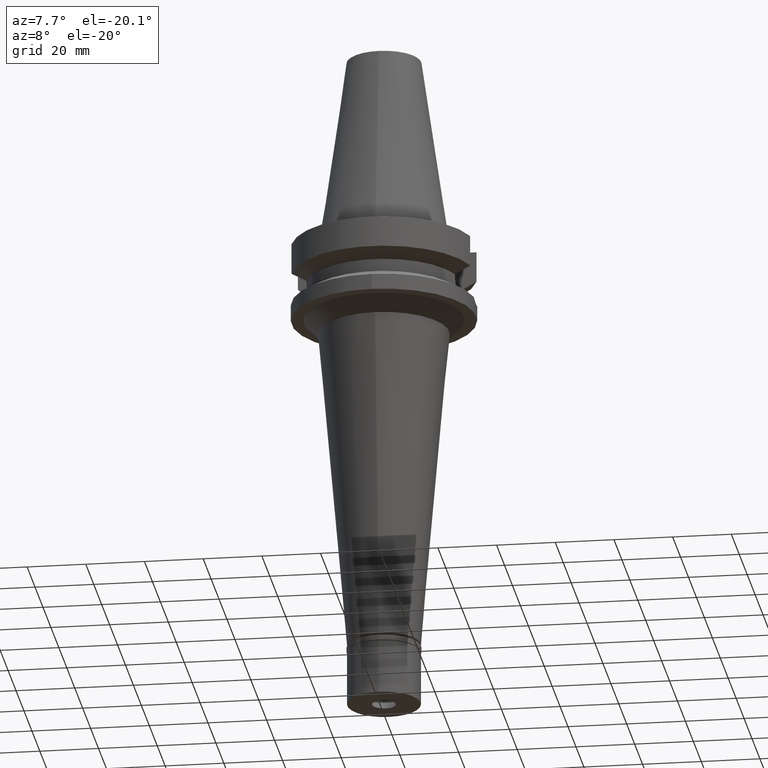
[diagram: clean part render]
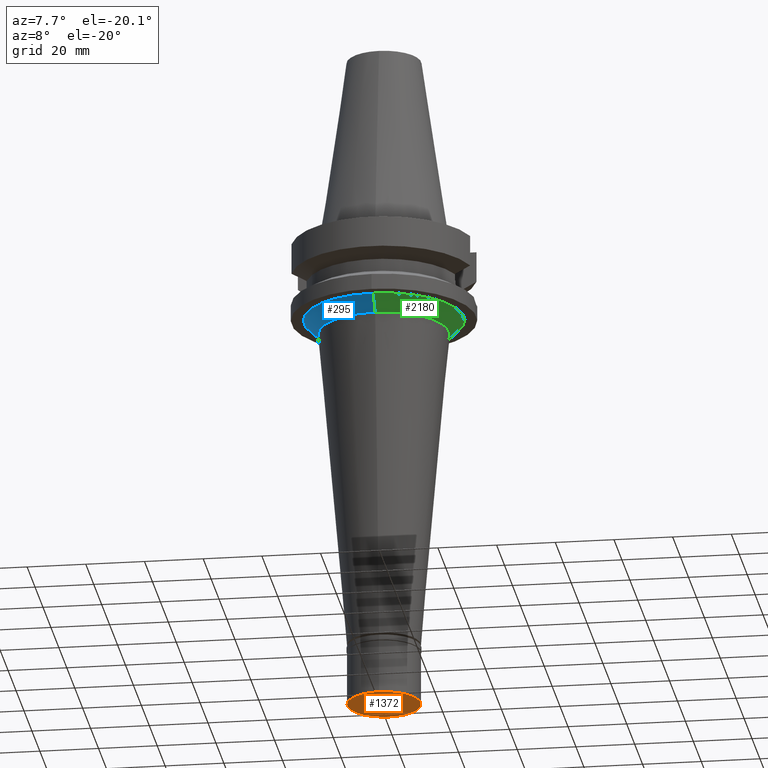
[diagram: same view with three faces highlighted in distinct colors, each labeled with its STEP entity id]
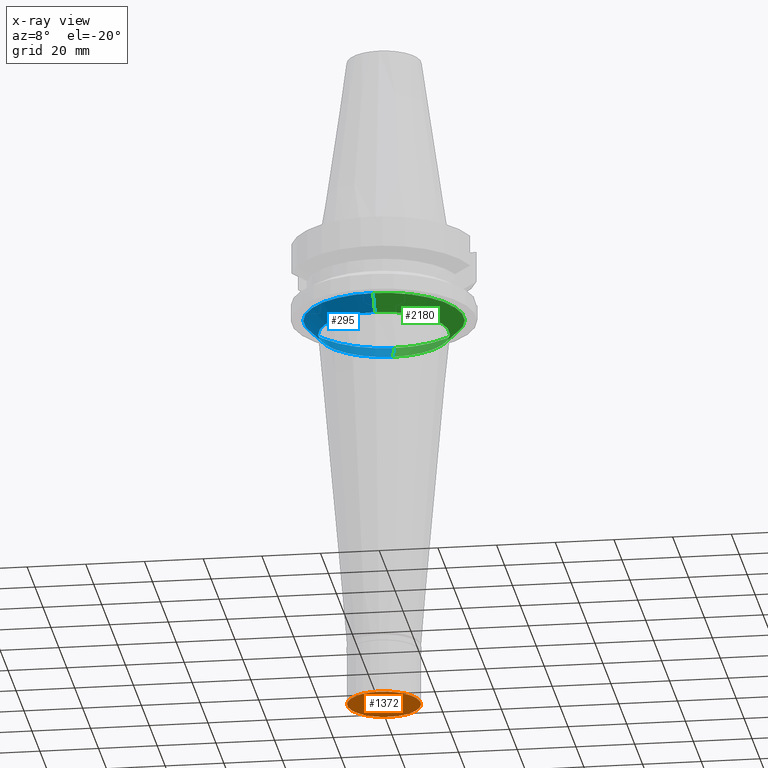
[diagram: x-ray of the same camera — body ghosted, the three highlighted faces saturated]
A machine part, auxiliary view with three faces highlighted in distinct colors.
The next image is the same camera in x-ray (body ghosted, the three faces saturated) — at least one of them is partly hidden behind the body in this view.
Their STEP definitions:

[orange] entity #1372 — the highlighted planar face has unit normal (0, 0, -1).
#53 = DIRECTION ( 'NONE',  ( 0.0000000000000000000, 1.000000000000000000, 0.0000000000000000000 ) ) ;
#72 = AXIS2_PLACEMENT_3D ( 'NONE', #2499, #307, #2226 ) ;
#119 = FACE_OUTER_BOUND ( 'NONE', #437, .T. ) ;
#270 = VERTEX_POINT ( 'NONE', #2022 ) ;
#290 = EDGE_CURVE ( 'NONE', #1470, #1261, #2713, .T. ) ;
#307 = DIRECTION ( 'NONE',  ( 0.0000000000000000000, 0.0000000000000000000, -1.000000000000000000 ) ) ;
#323 = ORIENTED_EDGE ( 'NONE', *, *, #290, .F. ) ;
#359 = CARTESIAN_POINT ( 'NONE',  ( 0.0000000000000000000, 0.0000000000000000000, -20.50000000000000000 ) ) ;
#414 = DIRECTION ( 'NONE',  ( 0.0000000000000000000, 0.0000000000000000000, -1.000000000000000000 ) ) ;
#437 = EDGE_LOOP ( 'NONE', ( #323, #1566 ) ) ;
#464 = CIRCLE ( 'NONE', #1433, 12.50000000000000000 ) ;
#567 = DIRECTION ( 'NONE',  ( 0.0000000000000000000, -1.000000000000000000, 0.0000000000000000000 ) ) ;
#583 = DIRECTION ( 'NONE',  ( 0.0000000000000000000, 0.0000000000000000000, -1.000000000000000000 ) ) ;
#587 = EDGE_CURVE ( 'NONE', #1261, #1470, #464, .T. ) ;
#613 = AXIS2_PLACEMENT_3D ( 'NONE', #2245, #814, #53 ) ;
#671 = DIRECTION ( 'NONE',  ( 0.0000000000000000000, 1.000000000000000000, 0.0000000000000000000 ) ) ;
#814 = DIRECTION ( 'NONE',  ( 0.0000000000000000000, 0.0000000000000000000, 1.000000000000000000 ) ) ;
#890 = CIRCLE ( 'NONE', #1854, 4.050000000000999911 ) ;
#1187 = AXIS2_PLACEMENT_3D ( 'NONE', #1629, #414, #671 ) ;
#1202 = EDGE_CURVE ( 'NONE', #270, #1942, #890, .T. ) ;
#1261 = VERTEX_POINT ( 'NONE', #2515 ) ;
#1372 = ADVANCED_FACE ( 'NONE', ( #119, #1511 ), #2511, .T. ) ;
#1433 = AXIS2_PLACEMENT_3D ( 'NONE', #2837, #1868, #3076 ) ;
#1470 = VERTEX_POINT ( 'NONE', #2338 ) ;
#1511 = FACE_BOUND ( 'NONE', #2637, .T. ) ;
#1566 = ORIENTED_EDGE ( 'NONE', *, *, #587, .F. ) ;
#1629 = CARTESIAN_POINT ( 'NONE',  ( 0.0000000000000000000, 0.0000000000000000000, -20.50000000000000000 ) ) ;
#1740 = CIRCLE ( 'NONE', #1187, 4.050000000000999911 ) ;
#1854 = AXIS2_PLACEMENT_3D ( 'NONE', #359, #583, #567 ) ;
#1868 = DIRECTION ( 'NONE',  ( 0.0000000000000000000, 0.0000000000000000000, 1.000000000000000000 ) ) ;
#1942 = VERTEX_POINT ( 'NONE', #3097 ) ;
#2022 = CARTESIAN_POINT ( 'NONE',  ( 0.0000000000000000000, -4.050000000000999911, -20.50000000000000000 ) ) ;
#2226 = DIRECTION ( 'NONE',  ( 0.0000000000000000000, -1.000000000000000000, 0.0000000000000000000 ) ) ;
#2245 = CARTESIAN_POINT ( 'NONE',  ( 0.0000000000000000000, 0.0000000000000000000, -20.50000000000000000 ) ) ;
#2338 = CARTESIAN_POINT ( 'NONE',  ( 0.0000000000000000000, 12.50000000000000000, -20.50000000000000000 ) ) ;
#2499 = CARTESIAN_POINT ( 'NONE',  ( 0.0000000000000000000, 0.0000000000000000000, -20.50000000000000000 ) ) ;
#2511 = PLANE ( 'NONE',  #72 ) ;
#2515 = CARTESIAN_POINT ( 'NONE',  ( 0.0000000000000000000, -12.50000000000000000, -20.50000000000000000 ) ) ;
#2580 = EDGE_CURVE ( 'NONE', #1942, #270, #1740, .T. ) ;
#2637 = EDGE_LOOP ( 'NONE', ( #2894, #2954 ) ) ;
#2713 = CIRCLE ( 'NONE', #613, 12.50000000000000000 ) ;
#2837 = CARTESIAN_POINT ( 'NONE',  ( 0.0000000000000000000, 0.0000000000000000000, -20.50000000000000000 ) ) ;
#2894 = ORIENTED_EDGE ( 'NONE', *, *, #2580, .F. ) ;
#2954 = ORIENTED_EDGE ( 'NONE', *, *, #1202, .F. ) ;
#3076 = DIRECTION ( 'NONE',  ( 0.0000000000000000000, -1.000000000000000000, 0.0000000000000000000 ) ) ;
#3097 = CARTESIAN_POINT ( 'NONE',  ( 0.0000000000000000000, 4.050000000000999911, -20.50000000000000000 ) ) ;

[blue] entity #295 — the highlighted conical surface has half-angle 45 deg.
#20 = DIRECTION ( 'NONE',  ( 0.0000000000000000000, 0.0000000000000000000, 1.000000000000000000 ) ) ;
#70 = ORIENTED_EDGE ( 'NONE', *, *, #1423, .F. ) ;
#80 = ORIENTED_EDGE ( 'NONE', *, *, #1410, .F. ) ;
#117 = CIRCLE ( 'NONE', #1391, 22.27248371585000086 ) ;
#280 = CARTESIAN_POINT ( 'NONE',  ( 0.0000000000000000000, -27.27248371584999731, -27.00000000000000000 ) ) ;
#292 = DIRECTION ( 'NONE',  ( 0.0000000000000000000, 0.7071067811867980391, -0.7071067811862969954 ) ) ;
#295 = ADVANCED_FACE ( 'NONE', ( #1027 ), #2422, .T. ) ;
#413 = AXIS2_PLACEMENT_3D ( 'NONE', #1784, #20, #1970 ) ;
#514 = CARTESIAN_POINT ( 'NONE',  ( 0.0000000000000000000, -22.27248371585000086, -32.00000000000000000 ) ) ;
#588 = DIRECTION ( 'NONE',  ( 0.0000000000000000000, -0.7071067811867980391, -0.7071067811862969954 ) ) ;
#787 = DIRECTION ( 'NONE',  ( 0.0000000000000000000, 0.0000000000000000000, -1.000000000000000000 ) ) ;
#802 = CARTESIAN_POINT ( 'NONE',  ( 0.0000000000000000000, 27.27248371584999731, -27.00000000000000000 ) ) ;
#875 = DIRECTION ( 'NONE',  ( 0.0000000000000000000, -1.000000000000000000, 0.0000000000000000000 ) ) ;
#1019 = ORIENTED_EDGE ( 'NONE', *, *, #2902, .T. ) ;
#1027 = FACE_OUTER_BOUND ( 'NONE', #2786, .T. ) ;
#1050 = DIRECTION ( 'NONE',  ( 0.0000000000000000000, -1.000000000000000000, 0.0000000000000000000 ) ) ;
#1162 = VERTEX_POINT ( 'NONE', #514 ) ;
#1255 = DIRECTION ( 'NONE',  ( 0.0000000000000000000, 0.0000000000000000000, -1.000000000000000000 ) ) ;
#1325 = LINE ( 'NONE', #280, #2871 ) ;
#1390 = AXIS2_PLACEMENT_3D ( 'NONE', #1807, #787, #1050 ) ;
#1391 = AXIS2_PLACEMENT_3D ( 'NONE', #3059, #1255, #875 ) ;
#1410 = EDGE_CURVE ( 'NONE', #2433, #1162, #1325, .T. ) ;
#1423 = EDGE_CURVE ( 'NONE', #1162, #2070, #117, .T. ) ;
#1436 = CIRCLE ( 'NONE', #1390, 27.27248371584999731 ) ;
#1784 = CARTESIAN_POINT ( 'NONE',  ( 0.0000000000000000000, 0.0000000000000000000, -29.50000000000000000 ) ) ;
#1807 = CARTESIAN_POINT ( 'NONE',  ( 0.0000000000000000000, 0.0000000000000000000, -27.00000000000000000 ) ) ;
#1823 = LINE ( 'NONE', #802, #2116 ) ;
#1970 = DIRECTION ( 'NONE',  ( 0.0000000000000000000, 1.000000000000000000, 0.0000000000000000000 ) ) ;
#2070 = VERTEX_POINT ( 'NONE', #2111 ) ;
#2087 = VERTEX_POINT ( 'NONE', #2651 ) ;
#2111 = CARTESIAN_POINT ( 'NONE',  ( 0.0000000000000000000, 22.27248371585000086, -32.00000000000000000 ) ) ;
#2116 = VECTOR ( 'NONE', #588, 1000.000000000000000 ) ;
#2422 = CONICAL_SURFACE ( 'NONE', #413, 24.77248371584999731, 0.7853981633972997312 ) ;
#2433 = VERTEX_POINT ( 'NONE', #2784 ) ;
#2651 = CARTESIAN_POINT ( 'NONE',  ( 0.0000000000000000000, 27.27248371584999731, -27.00000000000000000 ) ) ;
#2779 = EDGE_CURVE ( 'NONE', #2087, #2070, #1823, .T. ) ;
#2784 = CARTESIAN_POINT ( 'NONE',  ( 0.0000000000000000000, -27.27248371584999731, -27.00000000000000000 ) ) ;
#2786 = EDGE_LOOP ( 'NONE', ( #70, #80, #1019, #3090 ) ) ;
#2871 = VECTOR ( 'NONE', #292, 1000.000000000000000 ) ;
#2902 = EDGE_CURVE ( 'NONE', #2433, #2087, #1436, .T. ) ;
#3059 = CARTESIAN_POINT ( 'NONE',  ( 0.0000000000000000000, 0.0000000000000000000, -32.00000000000000000 ) ) ;
#3090 = ORIENTED_EDGE ( 'NONE', *, *, #2779, .T. ) ;

[green] entity #2180 — the highlighted conical surface has half-angle 45 deg.
#57 = DIRECTION ( 'NONE',  ( 0.0000000000000000000, 0.0000000000000000000, 1.000000000000000000 ) ) ;
#256 = FACE_OUTER_BOUND ( 'NONE', #1016, .T. ) ;
#280 = CARTESIAN_POINT ( 'NONE',  ( 0.0000000000000000000, -27.27248371584999731, -27.00000000000000000 ) ) ;
#284 = ORIENTED_EDGE ( 'NONE', *, *, #2873, .T. ) ;
#289 = EDGE_CURVE ( 'NONE', #2087, #2433, #883, .T. ) ;
#292 = DIRECTION ( 'NONE',  ( 0.0000000000000000000, 0.7071067811867980391, -0.7071067811862969954 ) ) ;
#514 = CARTESIAN_POINT ( 'NONE',  ( 0.0000000000000000000, -22.27248371585000086, -32.00000000000000000 ) ) ;
#588 = DIRECTION ( 'NONE',  ( 0.0000000000000000000, -0.7071067811867980391, -0.7071067811862969954 ) ) ;
#630 = AXIS2_PLACEMENT_3D ( 'NONE', #1742, #57, #2494 ) ;
#802 = CARTESIAN_POINT ( 'NONE',  ( 0.0000000000000000000, 27.27248371584999731, -27.00000000000000000 ) ) ;
#808 = ORIENTED_EDGE ( 'NONE', *, *, #2779, .F. ) ;
#883 = CIRCLE ( 'NONE', #1429, 27.27248371584999731 ) ;
#940 = CIRCLE ( 'NONE', #2521, 22.27248371583999997 ) ;
#1016 = EDGE_LOOP ( 'NONE', ( #1594, #1630, #284, #808 ) ) ;
#1063 = DIRECTION ( 'NONE',  ( 0.0000000000000000000, 0.0000000000000000000, -1.000000000000000000 ) ) ;
#1162 = VERTEX_POINT ( 'NONE', #514 ) ;
#1257 = CARTESIAN_POINT ( 'NONE',  ( 0.0000000000000000000, 0.0000000000000000000, -27.00000000000000000 ) ) ;
#1307 = CARTESIAN_POINT ( 'NONE',  ( 0.0000000000000000000, 0.0000000000000000000, -32.00000000000000000 ) ) ;
#1319 = DIRECTION ( 'NONE',  ( 0.0000000000000000000, -1.000000000000000000, 0.0000000000000000000 ) ) ;
#1325 = LINE ( 'NONE', #280, #2871 ) ;
#1410 = EDGE_CURVE ( 'NONE', #2433, #1162, #1325, .T. ) ;
#1429 = AXIS2_PLACEMENT_3D ( 'NONE', #1257, #1063, #2206 ) ;
#1594 = ORIENTED_EDGE ( 'NONE', *, *, #289, .T. ) ;
#1630 = ORIENTED_EDGE ( 'NONE', *, *, #1410, .T. ) ;
#1742 = CARTESIAN_POINT ( 'NONE',  ( 0.0000000000000000000, 0.0000000000000000000, -29.50000000000000000 ) ) ;
#1823 = LINE ( 'NONE', #802, #2116 ) ;
#2003 = DIRECTION ( 'NONE',  ( 0.0000000000000000000, 0.0000000000000000000, 1.000000000000000000 ) ) ;
#2070 = VERTEX_POINT ( 'NONE', #2111 ) ;
#2087 = VERTEX_POINT ( 'NONE', #2651 ) ;
#2111 = CARTESIAN_POINT ( 'NONE',  ( 0.0000000000000000000, 22.27248371585000086, -32.00000000000000000 ) ) ;
#2116 = VECTOR ( 'NONE', #588, 1000.000000000000000 ) ;
#2180 = ADVANCED_FACE ( 'NONE', ( #256 ), #2274, .T. ) ;
#2206 = DIRECTION ( 'NONE',  ( 0.0000000000000000000, 1.000000000000000000, 0.0000000000000000000 ) ) ;
#2274 = CONICAL_SURFACE ( 'NONE', #630, 24.77248371584999731, 0.7853981633972997312 ) ;
#2433 = VERTEX_POINT ( 'NONE', #2784 ) ;
#2494 = DIRECTION ( 'NONE',  ( 0.0000000000000000000, 1.000000000000000000, 0.0000000000000000000 ) ) ;
#2521 = AXIS2_PLACEMENT_3D ( 'NONE', #1307, #2003, #1319 ) ;
#2651 = CARTESIAN_POINT ( 'NONE',  ( 0.0000000000000000000, 27.27248371584999731, -27.00000000000000000 ) ) ;
#2779 = EDGE_CURVE ( 'NONE', #2087, #2070, #1823, .T. ) ;
#2784 = CARTESIAN_POINT ( 'NONE',  ( 0.0000000000000000000, -27.27248371584999731, -27.00000000000000000 ) ) ;
#2871 = VECTOR ( 'NONE', #292, 1000.000000000000000 ) ;
#2873 = EDGE_CURVE ( 'NONE', #1162, #2070, #940, .T. ) ;